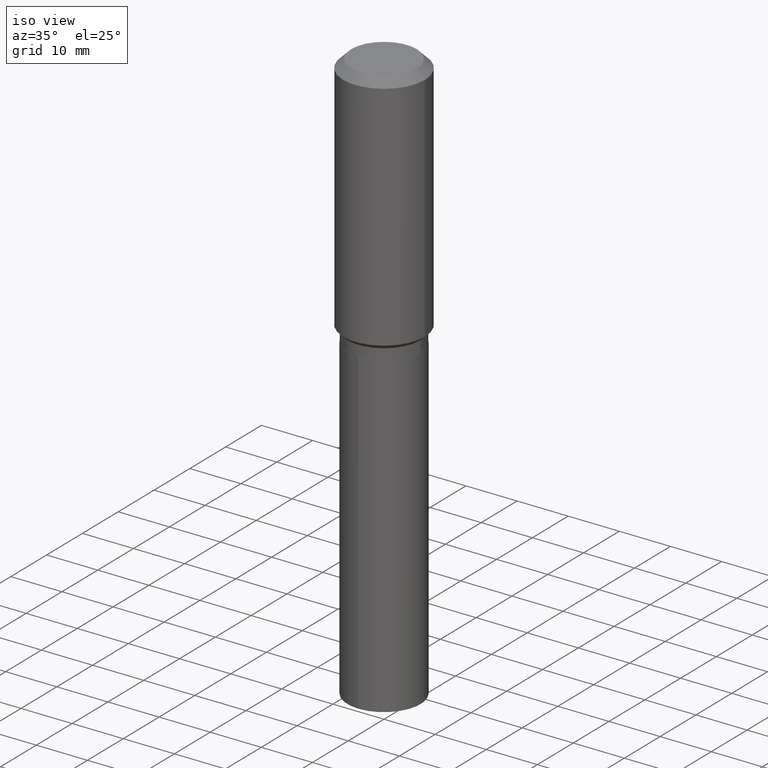
[diagram: clean part render]
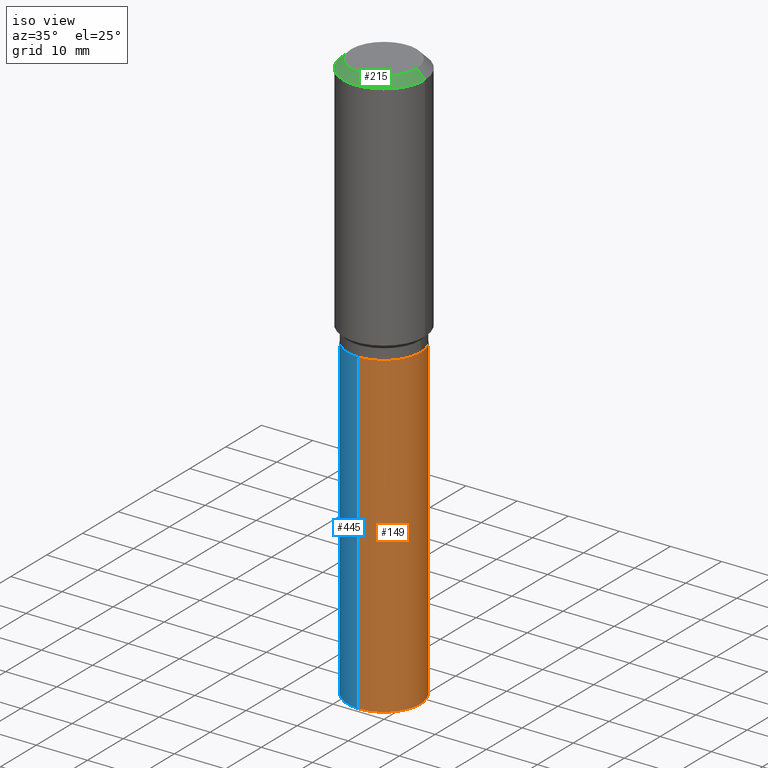
[diagram: same view with three faces highlighted in distinct colors, each labeled with its STEP entity id]
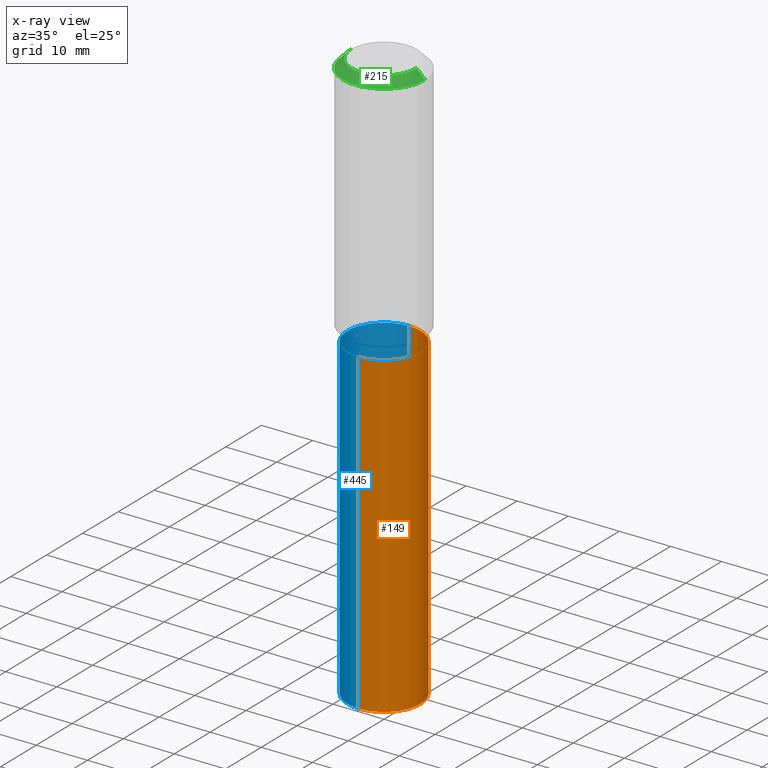
[diagram: x-ray of the same camera — body ghosted, the three highlighted faces saturated]
A machine part, iso view with three faces highlighted in distinct colors.
The next image is the same camera in x-ray (body ghosted, the three faces saturated) — at least one of them is partly hidden behind the body in this view.
Their STEP definitions:

[orange] entity #149 — the highlighted cylindrical surface (partial cylindrical patch) has radius 7.1437 mm, axis along (-0, 0, 1).
#3 = EDGE_CURVE ( 'NONE', #12, #281, #351, .T. ) ;
#12 = VERTEX_POINT ( 'NONE', #48 ) ;
#13 = DIRECTION ( 'NONE',  ( -2.445161175172823126E-29, 3.491921883962048973E-15, 1.000000000000000000 ) ) ;
#16 = CARTESIAN_POINT ( 'NONE',  ( -1.963958253099214392E-15, -0.2812500000000068834, -1.968499999999998362 ) ) ;
#19 = DIRECTION ( 'NONE',  ( -2.445161175172823126E-29, 3.491921883962048579E-15, 1.000000000000000000 ) ) ;
#21 = CARTESIAN_POINT ( 'NONE',  ( 1.080042445169747483E-28, -1.542229763716328320E-14, -4.416812678733299080 ) ) ;
#26 = CYLINDRICAL_SURFACE ( 'NONE', #235, 0.2812500000000000000 ) ;
#28 = CARTESIAN_POINT ( 'NONE',  ( 4.813905344975440153E-29, -6.872981015512730130E-15, -1.968499999999999472 ) ) ;
#45 = EDGE_CURVE ( 'NONE', #12, #202, #406, .T. ) ;
#46 = EDGE_LOOP ( 'NONE', ( #462, #83, #234, #298 ) ) ;
#48 = CARTESIAN_POINT ( 'NONE',  ( -1.963958253099154044E-15, -0.2812500000000154321, -4.416812678733297304 ) ) ;
#63 = EDGE_CURVE ( 'NONE', #281, #342, #278, .T. ) ;
#79 = LINE ( 'NONE', #385, #156 ) ;
#83 = ORIENTED_EDGE ( 'NONE', *, *, #439, .T. ) ;
#90 = DIRECTION ( 'NONE',  ( -2.445161175172823126E-29, 3.491921883962048973E-15, 1.000000000000000000 ) ) ;
#133 = DIRECTION ( 'NONE',  ( -2.445161175172823126E-29, 3.491921883962048579E-15, 1.000000000000000000 ) ) ;
#149 = ADVANCED_FACE ( 'NONE', ( #399 ), #26, .T. ) ;
#156 = VECTOR ( 'NONE', #13, 39.37007874015748143 ) ;
#177 = DIRECTION ( 'NONE',  ( -2.445161175172823126E-29, 3.491921883962048579E-15, 1.000000000000000000 ) ) ;
#179 = AXIS2_PLACEMENT_3D ( 'NONE', #207, #19, #213 ) ;
#180 = CARTESIAN_POINT ( 'NONE',  ( -1.963958253099214392E-15, -0.2812500000000068834, -1.968499999999998362 ) ) ;
#183 = CARTESIAN_POINT ( 'NONE',  ( 1.998401444325390241E-15, 0.2812499999999931166, -1.968500000000000583 ) ) ;
#202 = VERTEX_POINT ( 'NONE', #447 ) ;
#205 = DIRECTION ( 'NONE',  ( -6.982962677686266711E-15, -1.000000000000000000, 3.885294924322507688E-15 ) ) ;
#207 = CARTESIAN_POINT ( 'NONE',  ( 4.813905344975440153E-29, -6.872981015512730130E-15, -1.968499999999999472 ) ) ;
#213 = DIRECTION ( 'NONE',  ( -6.982962677686266711E-15, -1.000000000000000000, 3.885294924322507688E-15 ) ) ;
#226 = AXIS2_PLACEMENT_3D ( 'NONE', #21, #133, #319 ) ;
#234 = ORIENTED_EDGE ( 'NONE', *, *, #63, .F. ) ;
#235 = AXIS2_PLACEMENT_3D ( 'NONE', #28, #177, #205 ) ;
#261 = VECTOR ( 'NONE', #90, 39.37007874015748143 ) ;
#278 = CIRCLE ( 'NONE', #179, 0.2812500000000000000 ) ;
#281 = VERTEX_POINT ( 'NONE', #180 ) ;
#298 = ORIENTED_EDGE ( 'NONE', *, *, #3, .F. ) ;
#319 = DIRECTION ( 'NONE',  ( -6.982962677686266711E-15, -1.000000000000000000, 3.885294924322507688E-15 ) ) ;
#342 = VERTEX_POINT ( 'NONE', #183 ) ;
#351 = LINE ( 'NONE', #16, #261 ) ;
#385 = CARTESIAN_POINT ( 'NONE',  ( 1.998401444325329499E-15, 0.2812499999999931166, -1.968500000000000583 ) ) ;
#399 = FACE_OUTER_BOUND ( 'NONE', #46, .T. ) ;
#406 = CIRCLE ( 'NONE', #226, 0.2812500000000000000 ) ;
#439 = EDGE_CURVE ( 'NONE', #202, #342, #79, .T. ) ;
#447 = CARTESIAN_POINT ( 'NONE',  ( 1.998401444325389452E-15, 0.2812499999999845679, -4.416812678733299968 ) ) ;
#462 = ORIENTED_EDGE ( 'NONE', *, *, #45, .T. ) ;

[blue] entity #445 — the highlighted cylindrical surface (partial cylindrical patch) has radius 7.1437 mm, axis along (-0, 0, 1).
#3 = EDGE_CURVE ( 'NONE', #12, #281, #351, .T. ) ;
#11 = EDGE_CURVE ( 'NONE', #342, #281, #14, .T. ) ;
#12 = VERTEX_POINT ( 'NONE', #48 ) ;
#13 = DIRECTION ( 'NONE',  ( -2.445161175172823126E-29, 3.491921883962048973E-15, 1.000000000000000000 ) ) ;
#14 = CIRCLE ( 'NONE', #203, 0.2812500000000000000 ) ;
#16 = CARTESIAN_POINT ( 'NONE',  ( -1.963958253099214392E-15, -0.2812500000000068834, -1.968499999999998362 ) ) ;
#30 = EDGE_CURVE ( 'NONE', #202, #12, #100, .T. ) ;
#48 = CARTESIAN_POINT ( 'NONE',  ( -1.963958253099154044E-15, -0.2812500000000154321, -4.416812678733297304 ) ) ;
#59 = DIRECTION ( 'NONE',  ( -2.445161175172823126E-29, 3.491921883962048579E-15, 1.000000000000000000 ) ) ;
#79 = LINE ( 'NONE', #385, #156 ) ;
#86 = ORIENTED_EDGE ( 'NONE', *, *, #439, .F. ) ;
#90 = DIRECTION ( 'NONE',  ( -2.445161175172823126E-29, 3.491921883962048973E-15, 1.000000000000000000 ) ) ;
#100 = CIRCLE ( 'NONE', #155, 0.2812500000000000000 ) ;
#119 = DIRECTION ( 'NONE',  ( -6.982962677686266711E-15, -1.000000000000000000, 3.885294924322507688E-15 ) ) ;
#155 = AXIS2_PLACEMENT_3D ( 'NONE', #254, #59, #285 ) ;
#156 = VECTOR ( 'NONE', #13, 39.37007874015748143 ) ;
#157 = FACE_OUTER_BOUND ( 'NONE', #265, .T. ) ;
#161 = ORIENTED_EDGE ( 'NONE', *, *, #3, .T. ) ;
#180 = CARTESIAN_POINT ( 'NONE',  ( -1.963958253099214392E-15, -0.2812500000000068834, -1.968499999999998362 ) ) ;
#183 = CARTESIAN_POINT ( 'NONE',  ( 1.998401444325390241E-15, 0.2812499999999931166, -1.968500000000000583 ) ) ;
#202 = VERTEX_POINT ( 'NONE', #447 ) ;
#203 = AXIS2_PLACEMENT_3D ( 'NONE', #457, #239, #307 ) ;
#231 = DIRECTION ( 'NONE',  ( -2.445161175172823126E-29, 3.491921883962048579E-15, 1.000000000000000000 ) ) ;
#239 = DIRECTION ( 'NONE',  ( -2.445161175172823126E-29, 3.491921883962048579E-15, 1.000000000000000000 ) ) ;
#254 = CARTESIAN_POINT ( 'NONE',  ( 1.080042445169747483E-28, -1.542229763716328320E-14, -4.416812678733299080 ) ) ;
#261 = VECTOR ( 'NONE', #90, 39.37007874015748143 ) ;
#265 = EDGE_LOOP ( 'NONE', ( #86, #312, #161, #381 ) ) ;
#280 = CYLINDRICAL_SURFACE ( 'NONE', #478, 0.2812500000000000000 ) ;
#281 = VERTEX_POINT ( 'NONE', #180 ) ;
#285 = DIRECTION ( 'NONE',  ( -6.982962677686266711E-15, -1.000000000000000000, 3.885294924322507688E-15 ) ) ;
#307 = DIRECTION ( 'NONE',  ( -6.982962677686266711E-15, -1.000000000000000000, 3.885294924322507688E-15 ) ) ;
#311 = CARTESIAN_POINT ( 'NONE',  ( 4.813905344975440153E-29, -6.872981015512730130E-15, -1.968499999999999472 ) ) ;
#312 = ORIENTED_EDGE ( 'NONE', *, *, #30, .T. ) ;
#342 = VERTEX_POINT ( 'NONE', #183 ) ;
#351 = LINE ( 'NONE', #16, #261 ) ;
#381 = ORIENTED_EDGE ( 'NONE', *, *, #11, .F. ) ;
#385 = CARTESIAN_POINT ( 'NONE',  ( 1.998401444325329499E-15, 0.2812499999999931166, -1.968500000000000583 ) ) ;
#439 = EDGE_CURVE ( 'NONE', #202, #342, #79, .T. ) ;
#445 = ADVANCED_FACE ( 'NONE', ( #157 ), #280, .T. ) ;
#447 = CARTESIAN_POINT ( 'NONE',  ( 1.998401444325389452E-15, 0.2812499999999845679, -4.416812678733299968 ) ) ;
#457 = CARTESIAN_POINT ( 'NONE',  ( 4.813905344975440153E-29, -6.872981015512730130E-15, -1.968499999999999472 ) ) ;
#478 = AXIS2_PLACEMENT_3D ( 'NONE', #311, #231, #119 ) ;

[green] entity #215 — the highlighted conical surface has half-angle 45 deg.
#33 = VERTEX_POINT ( 'NONE', #214 ) ;
#34 = CARTESIAN_POINT ( 'NONE',  ( 0.3149500000000000077, -2.380642253931875190E-15, -0.06299000000000037902 ) ) ;
#49 = CARTESIAN_POINT ( 'NONE',  ( -0.3149500000000000077, 1.979355685803558833E-15, -0.06299000000000037902 ) ) ;
#52 = CARTESIAN_POINT ( 'NONE',  ( 1.540400801016026505E-30, -2.199284095337310628E-16, -0.06299000000000037902 ) ) ;
#56 = CARTESIAN_POINT ( 'NONE',  ( -9.427742298522569579E-47, 1.346031739168368629E-32, 3.855188123715871501E-18 ) ) ;
#76 = VERTEX_POINT ( 'NONE', #103 ) ;
#80 = DIRECTION ( 'NONE',  ( -0.7071067811865453523, 2.468850131082234184E-15, -0.7071067811865496822 ) ) ;
#81 = ORIENTED_EDGE ( 'NONE', *, *, #433, .T. ) ;
#82 = EDGE_CURVE ( 'NONE', #152, #131, #93, .T. ) ;
#93 = CIRCLE ( 'NONE', #210, 0.2519600000000000173 ) ;
#94 = CONICAL_SURFACE ( 'NONE', #384, 0.3149500000000000077, 0.7853981633974452814 ) ;
#97 = DIRECTION ( 'NONE',  ( 1.000000000000000000, -6.982962677686266711E-15, 0.000000000000000000 ) ) ;
#98 = EDGE_CURVE ( 'NONE', #33, #76, #306, .T. ) ;
#103 = CARTESIAN_POINT ( 'NONE',  ( 0.3149500000000000077, -2.419212504871020909E-15, -0.06299000000000037902 ) ) ;
#107 = DIRECTION ( 'NONE',  ( -1.000000000000000000, 6.982962677686266711E-15, 0.000000000000000000 ) ) ;
#115 = DIRECTION ( 'NONE',  ( 2.445468806185136597E-29, -3.491481338843145583E-15, -1.000000000000000000 ) ) ;
#123 = ORIENTED_EDGE ( 'NONE', *, *, #82, .F. ) ;
#125 = ORIENTED_EDGE ( 'NONE', *, *, #244, .F. ) ;
#131 = VERTEX_POINT ( 'NONE', #363 ) ;
#151 = DIRECTION ( 'NONE',  ( 0.7071067811865453523, -7.319954787623248157E-15, -0.7071067811865496822 ) ) ;
#152 = VERTEX_POINT ( 'NONE', #326 ) ;
#160 = ORIENTED_EDGE ( 'NONE', *, *, #98, .T. ) ;
#168 = DIRECTION ( 'NONE',  ( 1.000000000000000000, -6.982962677686266711E-15, 4.876115136096691995E-29 ) ) ;
#210 = AXIS2_PLACEMENT_3D ( 'NONE', #56, #321, #168 ) ;
#214 = CARTESIAN_POINT ( 'NONE',  ( -0.3149500000000000077, -1.102428393188106153E-15, -0.06299000000000037902 ) ) ;
#215 = ADVANCED_FACE ( 'NONE', ( #331 ), #94, .T. ) ;
#216 = LINE ( 'NONE', #34, #366 ) ;
#217 = AXIS2_PLACEMENT_3D ( 'NONE', #52, #323, #97 ) ;
#218 = CARTESIAN_POINT ( 'NONE',  ( 1.540400801016026505E-30, -2.199284095337310628E-16, -0.06299000000000037902 ) ) ;
#244 = EDGE_CURVE ( 'NONE', #131, #76, #216, .T. ) ;
#263 = VECTOR ( 'NONE', #80, 39.37007874015748143 ) ;
#306 = CIRCLE ( 'NONE', #217, 0.3149500000000000077 ) ;
#308 = LINE ( 'NONE', #49, #263 ) ;
#321 = DIRECTION ( 'NONE',  ( -2.445468806185136597E-29, 3.491481338843145583E-15, 1.000000000000000000 ) ) ;
#323 = DIRECTION ( 'NONE',  ( -2.445468806185136597E-29, 3.491481338843145583E-15, 1.000000000000000000 ) ) ;
#326 = CARTESIAN_POINT ( 'NONE',  ( -0.2519600000000000173, 1.869391481036695286E-15, 3.855188123703182704E-18 ) ) ;
#331 = FACE_OUTER_BOUND ( 'NONE', #487, .T. ) ;
#363 = CARTESIAN_POINT ( 'NONE',  ( 0.2519600000000000173, -2.054606664725195058E-15, 3.855188123729206640E-18 ) ) ;
#366 = VECTOR ( 'NONE', #151, 39.37007874015748143 ) ;
#384 = AXIS2_PLACEMENT_3D ( 'NONE', #218, #115, #107 ) ;
#433 = EDGE_CURVE ( 'NONE', #152, #33, #308, .T. ) ;
#487 = EDGE_LOOP ( 'NONE', ( #125, #123, #81, #160 ) ) ;